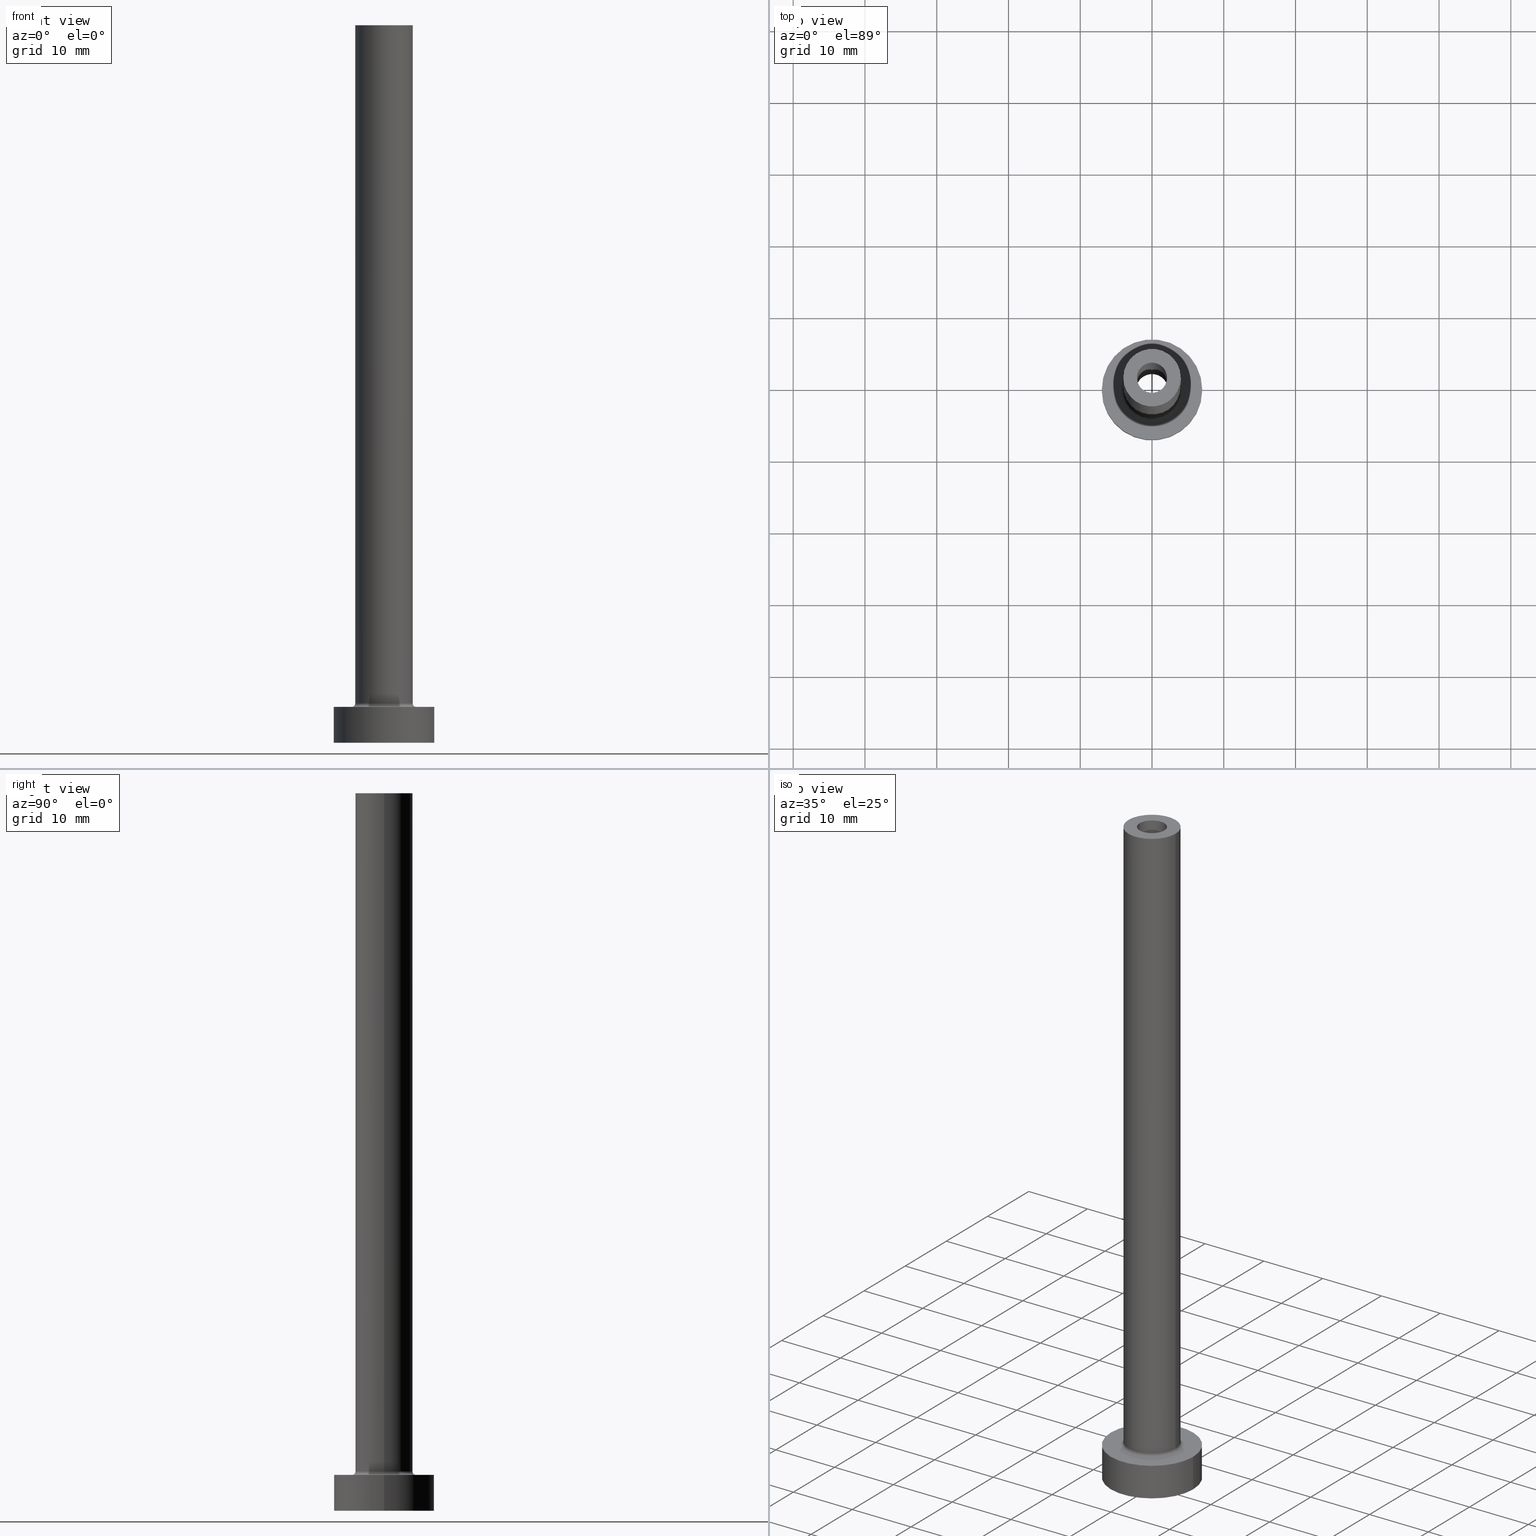
[diagram: canonical four-view strip — front | top / right | iso, engineering-drawing reading convention]
A machine part, canonical four-view strip (front | top / right | iso — engineering-drawing reading convention). The complete STEP part file that produces these views, byte-faithful:
ISO-10303-21;
HEADER;
FILE_DESCRIPTION (( 'STEP AP203' ),
    '1' );
FILE_NAME ('b504.STEP',
    '2023-02-13T11:07:52',
    ( '' ),
    ( '' ),
    'SwSTEP 2.0',
    'SolidWorks 2019',
    '' );
FILE_SCHEMA (( 'CONFIG_CONTROL_DESIGN' ));
ENDSEC;

DATA;
#1 = APPROVAL_DATE_TIME ( #321, #395 ) ;
#2 = DIRECTION ( 'NONE',  ( 0.000000000000000000, 0.000000000000000000, 1.000000000000000000 ) ) ;
#3 = ORIENTED_EDGE ( 'NONE', *, *, #135, .T. ) ;
#4 = MANIFOLD_SOLID_BREP ( 'Odebrat vysunut�m4', #252 ) ;
#5 = PERSON_AND_ORGANIZATION ( #107, #396 ) ;
#6 = EDGE_CURVE ( 'NONE', #234, #433, #453, .T. ) ;
#7 = VECTOR ( 'NONE', #91, 1000.000000000000000 ) ;
#8 = APPROVAL_PERSON_ORGANIZATION ( #5, #395, #420 ) ;
#9 = CARTESIAN_POINT ( 'NONE',  ( -7.000000000000000000, 0.000000000000000000, 0.000000000000000000 ) ) ;
#10 = VERTEX_POINT ( 'NONE', #49 ) ;
#11 = FACE_OUTER_BOUND ( 'NONE', #364, .T. ) ;
#12 = VERTEX_POINT ( 'NONE', #81 ) ;
#13 = ADVANCED_FACE ( 'NONE', ( #445, #19 ), #122, .F. ) ;
#14 = CARTESIAN_POINT ( 'NONE',  ( 0.000000000000000000, 0.000000000000000000, 5.500000000000005329 ) ) ;
#15 = CARTESIAN_POINT ( 'NONE',  ( 0.000000000000000000, 0.000000000000000000, 61.36396103067894359 ) ) ;
#16 = ORIENTED_EDGE ( 'NONE', *, *, #33, .T. ) ;
#17 = LINE ( 'NONE', #223, #362 ) ;
#18 = DIRECTION ( 'NONE',  ( 1.000000000000000000, 0.000000000000000000, 0.000000000000000000 ) ) ;
#19 = FACE_OUTER_BOUND ( 'NONE', #374, .T. ) ;
#20 = DIRECTION ( 'NONE',  ( 1.000000000000000000, 0.000000000000000000, 0.000000000000000000 ) ) ;
#21 = FACE_OUTER_BOUND ( 'NONE', #74, .T. ) ;
#22 = ORIENTED_EDGE ( 'NONE', *, *, #360, .T. ) ;
#23 = CIRCLE ( 'NONE', #287, 0.5000000000000004441 ) ;
#24 = DIRECTION ( 'NONE',  ( 0.000000000000000000, 0.000000000000000000, 1.000000000000000000 ) ) ;
#25 = ORIENTED_EDGE ( 'NONE', *, *, #419, .T. ) ;
#26 = AXIS2_PLACEMENT_3D ( 'NONE', #50, #24, #20 ) ;
#27 = CARTESIAN_POINT ( 'NONE',  ( 0.000000000000000000, 0.000000000000000000, 55.00000000000000711 ) ) ;
#28 = DIRECTION ( 'NONE',  ( -0.000000000000000000, -0.000000000000000000, -1.000000000000000000 ) ) ;
#29 = VERTEX_POINT ( 'NONE', #160 ) ;
#30 = CARTESIAN_POINT ( 'NONE',  ( 0.000000000000000000, 0.000000000000000000, 5.500000000000005329 ) ) ;
#31 = ORIENTED_EDGE ( 'NONE', *, *, #443, .T. ) ;
#32 = CIRCLE ( 'NONE', #84, 2.100000000000000089 ) ;
#33 = EDGE_CURVE ( 'NONE', #182, #12, #144, .T. ) ;
#34 = LINE ( 'NONE', #242, #245 ) ;
#35 = PERSON_AND_ORGANIZATION_ROLE ( 'design_owner' ) ;
#36 = CARTESIAN_POINT ( 'NONE',  ( 7.000000000000000000, 8.572527594031473190E-16, 5.000000000000000000 ) ) ;
#37 = ADVANCED_FACE ( 'NONE', ( #426 ), #461, .F. ) ;
#38 = SHAPE_DEFINITION_REPRESENTATION ( #435, #401 ) ;
#39 = ORIENTED_EDGE ( 'NONE', *, *, #347, .F. ) ;
#40 = LOCAL_TIME ( 12, 7, 52.00000000000000000, #139 ) ;
#41 = PRODUCT_DEFINITION ( 'NEZN�M�', '', #268, #441 ) ;
#42 = CARTESIAN_POINT ( 'NONE',  ( 0.000000000000000000, 0.000000000000000000, 5.000000000000000000 ) ) ;
#43 = VERTEX_POINT ( 'NONE', #36 ) ;
#44 = ORIENTED_EDGE ( 'NONE', *, *, #229, .T. ) ;
#45 = DIRECTION ( 'NONE',  ( 1.000000000000000000, 0.000000000000000000, 0.000000000000000000 ) ) ;
#46 = AXIS2_PLACEMENT_3D ( 'NONE', #202, #444, #94 ) ;
#47 = VERTEX_POINT ( 'NONE', #313 ) ;
#48 = AXIS2_PLACEMENT_3D ( 'NONE', #15, #147, #297 ) ;
#49 = CARTESIAN_POINT ( 'NONE',  ( -4.000000000000000000, 0.000000000000000000, 5.500000000000005329 ) ) ;
#50 = CARTESIAN_POINT ( 'NONE',  ( 0.000000000000000000, 0.000000000000000000, 5.500000000000005329 ) ) ;
#51 = CYLINDRICAL_SURFACE ( 'NONE', #206, 7.000000000000000000 ) ;
#52 = DIRECTION ( 'NONE',  ( 1.000000000000000000, 0.000000000000000000, -0.000000000000000000 ) ) ;
#53 = CARTESIAN_POINT ( 'NONE',  ( 0.000000000000000000, 0.000000000000000000, 5.000000000000000000 ) ) ;
#54 = CARTESIAN_POINT ( 'NONE',  ( 2.250000000000000000, 2.755455298081544285E-16, 0.000000000000000000 ) ) ;
#55 = CARTESIAN_POINT ( 'NONE',  ( 2.100000000000000089, 2.571758278209441464E-16, 55.00000000000000711 ) ) ;
#56 = EDGE_LOOP ( 'NONE', ( #406, #185, #39, #342 ) ) ;
#57 = CIRCLE ( 'NONE', #370, 2.250000000000000000 ) ;
#58 = ADVANCED_FACE ( 'NONE', ( #283 ), #61, .T. ) ;
#59 = CARTESIAN_POINT ( 'NONE',  ( 0.000000000000000000, 0.000000000000000000, 0.000000000000000000 ) ) ;
#60 = ORIENTED_EDGE ( 'NONE', *, *, #279, .T. ) ;
#61 = CYLINDRICAL_SURFACE ( 'NONE', #346, 4.000000000000000000 ) ;
#62 = DIRECTION ( 'NONE',  ( 0.000000000000000000, 0.000000000000000000, 1.000000000000000000 ) ) ;
#63 = AXIS2_PLACEMENT_3D ( 'NONE', #231, #299, #189 ) ;
#64 = CIRCLE ( 'NONE', #255, 7.000000000000000000 ) ;
#65 =( NAMED_UNIT ( * ) SI_UNIT ( $, .STERADIAN. ) SOLID_ANGLE_UNIT ( ) );
#66 = CALENDAR_DATE ( 2023, 13, 2 ) ;
#67 = CARTESIAN_POINT ( 'NONE',  ( 4.000000000000000000, 4.898587196589412829E-16, 100.0000000000000000 ) ) ;
#68 = APPROVAL_STATUS ( 'not_yet_approved' ) ;
#69 = DIRECTION ( 'NONE',  ( -0.000000000000000000, -0.000000000000000000, -1.000000000000000000 ) ) ;
#70 = CARTESIAN_POINT ( 'NONE',  ( 2.100000000000000089, 2.571758278209441464E-16, 100.0000000000000000 ) ) ;
#71 = DATE_AND_TIME ( #66, #110 ) ;
#72 = FACE_BOUND ( 'NONE', #293, .T. ) ;
#73 = ADVANCED_FACE ( 'NONE', ( #175 ), #204, .F. ) ;
#74 = EDGE_LOOP ( 'NONE', ( #250, #178, #129, #80 ) ) ;
#75 = PERSON_AND_ORGANIZATION_ROLE ( 'classification_officer' ) ;
#76 = ORIENTED_EDGE ( 'NONE', *, *, #289, .F. ) ;
#77 = LOCAL_TIME ( 12, 7, 52.00000000000000000, #288 ) ;
#78 = CARTESIAN_POINT ( 'NONE',  ( -4.500000000000000888, 5.510910596163089556E-16, 5.500000000000005329 ) ) ;
#79 = DIRECTION ( 'NONE',  ( 0.000000000000000000, -1.000000000000000000, 0.000000000000000000 ) ) ;
#80 = ORIENTED_EDGE ( 'NONE', *, *, #393, .T. ) ;
#81 = CARTESIAN_POINT ( 'NONE',  ( -2.100000000000000089, 0.000000000000000000, 55.00000000000000711 ) ) ;
#82 = AXIS2_PLACEMENT_3D ( 'NONE', #281, #388, #352 ) ;
#83 = DIRECTION ( 'NONE',  ( 1.000000000000000000, 0.000000000000000000, 0.000000000000000000 ) ) ;
#84 = AXIS2_PLACEMENT_3D ( 'NONE', #131, #62, #452 ) ;
#85 = CARTESIAN_POINT ( 'NONE',  ( -4.000000000000000000, 0.000000000000000000, 100.0000000000000000 ) ) ;
#86 = ORIENTED_EDGE ( 'NONE', *, *, #229, .F. ) ;
#87 = CARTESIAN_POINT ( 'NONE',  ( 0.000000000000000000, 0.000000000000000000, 55.00000000000000711 ) ) ;
#88 = CARTESIAN_POINT ( 'NONE',  ( 0.000000000000000000, 0.000000000000000000, 0.000000000000000000 ) ) ;
#89 = VERTEX_POINT ( 'NONE', #67 ) ;
#90 = DIRECTION ( 'NONE',  ( -0.000000000000000000, -0.000000000000000000, -1.000000000000000000 ) ) ;
#91 = DIRECTION ( 'NONE',  ( 0.000000000000000000, 0.000000000000000000, -1.000000000000000000 ) ) ;
#92 = ORIENTED_EDGE ( 'NONE', *, *, #369, .F. ) ;
#93 = VECTOR ( 'NONE', #407, 1000.000000000000000 ) ;
#94 = DIRECTION ( 'NONE',  ( 1.000000000000000000, 0.000000000000000000, 0.000000000000000000 ) ) ;
#95 = DATE_AND_TIME ( #98, #40 ) ;
#96 = APPLICATION_CONTEXT ( 'configuration controlled 3d designs of mechanical parts and assemblies' ) ;
#97 = SECURITY_CLASSIFICATION ( '', '', #136 ) ;
#98 = CALENDAR_DATE ( 2023, 13, 2 ) ;
#99 = PERSON_AND_ORGANIZATION ( #107, #396 ) ;
#100 = DIRECTION ( 'NONE',  ( -0.000000000000000000, -0.000000000000000000, -1.000000000000000000 ) ) ;
#101 = APPROVAL_DATE_TIME ( #422, #153 ) ;
#102 = VECTOR ( 'NONE', #274, 1000.000000000000000 ) ;
#103 = ORIENTED_EDGE ( 'NONE', *, *, #221, .F. ) ;
#104 = EDGE_LOOP ( 'NONE', ( #222, #311, #416, #201 ) ) ;
#105 = EDGE_CURVE ( 'NONE', #29, #152, #34, .T. ) ;
#106 = EDGE_LOOP ( 'NONE', ( #357, #193, #377, #103 ) ) ;
#107 = PERSON ( 'NEUR�EN�', 'NEUR�EN�', 'NEUR�EN�', ('NEUR�EN�'), ('NEUR�EN�'), ('NEUR�EN�') ) ;
#108 = CC_DESIGN_PERSON_AND_ORGANIZATION_ASSIGNMENT ( #209, #75, ( #97 ) ) ;
#109 = DIRECTION ( 'NONE',  ( 0.000000000000000000, 0.000000000000000000, 1.000000000000000000 ) ) ;
#110 = LOCAL_TIME ( 12, 7, 52.00000000000000000, #133 ) ;
#111 = CARTESIAN_POINT ( 'NONE',  ( 4.500000000000000888, 0.000000000000000000, 5.500000000000005329 ) ) ;
#112 = CARTESIAN_POINT ( 'NONE',  ( 0.000000000000000000, 0.000000000000000000, 5.000000000000000000 ) ) ;
#113 = FACE_OUTER_BOUND ( 'NONE', #197, .T. ) ;
#114 = ORIENTED_EDGE ( 'NONE', *, *, #105, .T. ) ;
#115 = CARTESIAN_POINT ( 'NONE',  ( -4.500000000000000888, 5.510910596163088569E-16, 5.000000000000002665 ) ) ;
#116 = ADVANCED_FACE ( 'NONE', ( #72, #378 ), #243, .T. ) ;
#117 = DIRECTION ( 'NONE',  ( 1.000000000000000000, 0.000000000000000000, 0.000000000000000000 ) ) ;
#118 = CIRCLE ( 'NONE', #421, 7.000000000000000000 ) ;
#119 = CYLINDRICAL_SURFACE ( 'NONE', #218, 7.000000000000000000 ) ;
#120 = LOCAL_TIME ( 12, 7, 52.00000000000000000, #392 ) ;
#121 = CARTESIAN_POINT ( 'NONE',  ( -2.250000000000000000, 0.000000000000000000, 55.00000000000000711 ) ) ;
#122 = PLANE ( 'NONE',  #278 ) ;
#123 = CARTESIAN_POINT ( 'NONE',  ( 4.000000000000000000, 4.898587196589412829E-16, 100.0000000000000000 ) ) ;
#124 = EDGE_CURVE ( 'NONE', #361, #182, #391, .T. ) ;
#125 = LINE ( 'NONE', #233, #132 ) ;
#126 = ORIENTED_EDGE ( 'NONE', *, *, #380, .F. ) ;
#127 = AXIS2_PLACEMENT_3D ( 'NONE', #417, #236, #172 ) ;
#128 = CARTESIAN_POINT ( 'NONE',  ( 0.000000000000000000, 0.000000000000000000, 100.0000000000000000 ) ) ;
#129 = ORIENTED_EDGE ( 'NONE', *, *, #6, .T. ) ;
#130 =( GEOMETRIC_REPRESENTATION_CONTEXT ( 3 ) GLOBAL_UNCERTAINTY_ASSIGNED_CONTEXT ( ( #266 ) ) GLOBAL_UNIT_ASSIGNED_CONTEXT ( ( #314, #389, #65 ) ) REPRESENTATION_CONTEXT ( 'NONE', 'WORKASPACE' ) );
#131 = CARTESIAN_POINT ( 'NONE',  ( 0.000000000000000000, 0.000000000000000000, 55.00000000000000711 ) ) ;
#132 = VECTOR ( 'NONE', #384, 1000.000000000000000 ) ;
#133 = COORDINATED_UNIVERSAL_TIME_OFFSET ( 1, 0, .AHEAD. ) ;
#134 = CARTESIAN_POINT ( 'NONE',  ( 0.000000000000000000, 0.000000000000000000, 100.0000000000000000 ) ) ;
#135 = EDGE_CURVE ( 'NONE', #29, #43, #118, .T. ) ;
#136 = SECURITY_CLASSIFICATION_LEVEL ( 'unclassified' ) ;
#137 = PERSON_AND_ORGANIZATION ( #107, #396 ) ;
#138 = AXIS2_PLACEMENT_3D ( 'NONE', #196, #270, #408 ) ;
#139 = COORDINATED_UNIVERSAL_TIME_OFFSET ( 1, 0, .AHEAD. ) ;
#140 = ADVANCED_FACE ( 'NONE', ( #181, #177 ), #214, .T. ) ;
#141 = ORIENTED_EDGE ( 'NONE', *, *, #221, .T. ) ;
#142 = CARTESIAN_POINT ( 'NONE',  ( 0.000000000000000000, 0.000000000000000000, 0.000000000000000000 ) ) ;
#143 = EDGE_LOOP ( 'NONE', ( #304, #451 ) ) ;
#144 = CIRCLE ( 'NONE', #82, 2.100000000000000089 ) ;
#145 = DIRECTION ( 'NONE',  ( -0.000000000000000000, -0.000000000000000000, -1.000000000000000000 ) ) ;
#146 = AXIS2_PLACEMENT_3D ( 'NONE', #411, #332, #405 ) ;
#147 = DIRECTION ( 'NONE',  ( 0.000000000000000000, 0.000000000000000000, -1.000000000000000000 ) ) ;
#148 = ORIENTED_EDGE ( 'NONE', *, *, #194, .T. ) ;
#149 = APPLICATION_CONTEXT ( 'configuration controlled 3d designs of mechanical parts and assemblies' ) ;
#150 = DIRECTION ( 'NONE',  ( 1.224646799147353207E-16, 1.000000000000000000, -0.000000000000000000 ) ) ;
#151 = DIRECTION ( 'NONE',  ( 0.000000000000000000, 0.000000000000000000, -1.000000000000000000 ) ) ;
#152 = VERTEX_POINT ( 'NONE', #9 ) ;
#153 = APPROVAL ( #238, 'NEUR�EN�' ) ;
#154 = DIRECTION ( 'NONE',  ( -0.000000000000000000, -0.000000000000000000, -1.000000000000000000 ) ) ;
#155 = DIRECTION ( 'NONE',  ( -1.000000000000000000, 0.000000000000000000, 0.000000000000000000 ) ) ;
#156 = DIRECTION ( 'NONE',  ( -0.000000000000000000, -0.000000000000000000, -1.000000000000000000 ) ) ;
#157 = EDGE_CURVE ( 'NONE', #448, #382, #23, .T. ) ;
#158 = CC_DESIGN_SECURITY_CLASSIFICATION ( #97, ( #268 ) ) ;
#159 = DIRECTION ( 'NONE',  ( 0.000000000000000000, 0.000000000000000000, -1.000000000000000000 ) ) ;
#160 = CARTESIAN_POINT ( 'NONE',  ( -7.000000000000000000, 0.000000000000000000, 5.000000000000000000 ) ) ;
#161 = CYLINDRICAL_SURFACE ( 'NONE', #48, 2.250000000000000000 ) ;
#162 = ORIENTED_EDGE ( 'NONE', *, *, #322, .F. ) ;
#163 = DIRECTION ( 'NONE',  ( 1.000000000000000000, 0.000000000000000000, 0.000000000000000000 ) ) ;
#164 = ORIENTED_EDGE ( 'NONE', *, *, #263, .T. ) ;
#165 = CARTESIAN_POINT ( 'NONE',  ( 0.000000000000000000, 0.000000000000000000, 5.000000000000000000 ) ) ;
#166 = CIRCLE ( 'NONE', #423, 4.000000000000000000 ) ;
#167 = CC_DESIGN_PERSON_AND_ORGANIZATION_ASSIGNMENT ( #99, #35, ( #256 ) ) ;
#168 = DIRECTION ( 'NONE',  ( 0.000000000000000000, 0.000000000000000000, -1.000000000000000000 ) ) ;
#169 = DIRECTION ( 'NONE',  ( -0.000000000000000000, -0.000000000000000000, -1.000000000000000000 ) ) ;
#170 = DATE_TIME_ROLE ( 'creation_date' ) ;
#171 = CALENDAR_DATE ( 2023, 13, 2 ) ;
#172 = DIRECTION ( 'NONE',  ( -1.000000000000000000, 0.000000000000000000, 0.000000000000000000 ) ) ;
#173 = AXIS2_PLACEMENT_3D ( 'NONE', #88, #367, #303 ) ;
#174 = TOROIDAL_SURFACE ( 'NONE', #410, 4.500000000000000888, 0.5000000000000000000 ) ;
#175 = FACE_OUTER_BOUND ( 'NONE', #106, .T. ) ;
#176 = PERSON_AND_ORGANIZATION_ROLE ( 'creator' ) ;
#177 = FACE_OUTER_BOUND ( 'NONE', #415, .T. ) ;
#178 = ORIENTED_EDGE ( 'NONE', *, *, #380, .T. ) ;
#179 = EDGE_LOOP ( 'NONE', ( #212, #162, #432, #309 ) ) ;
#180 = VECTOR ( 'NONE', #156, 1000.000000000000000 ) ;
#181 = FACE_BOUND ( 'NONE', #143, .T. ) ;
#182 = VERTEX_POINT ( 'NONE', #55 ) ;
#183 = ORIENTED_EDGE ( 'NONE', *, *, #263, .F. ) ;
#184 = DIRECTION ( 'NONE',  ( -1.000000000000000000, 0.000000000000000000, 0.000000000000000000 ) ) ;
#185 = ORIENTED_EDGE ( 'NONE', *, *, #424, .T. ) ;
#186 = ADVANCED_FACE ( 'NONE', ( #21 ), #447, .F. ) ;
#187 = CYLINDRICAL_SURFACE ( 'NONE', #371, 4.000000000000000000 ) ;
#188 = CIRCLE ( 'NONE', #146, 4.000000000000000000 ) ;
#189 = DIRECTION ( 'NONE',  ( 1.000000000000000000, 0.000000000000000000, 0.000000000000000000 ) ) ;
#190 = CARTESIAN_POINT ( 'NONE',  ( -2.250000000000000000, 0.000000000000000000, 61.36396103067894359 ) ) ;
#191 = CC_DESIGN_PERSON_AND_ORGANIZATION_ASSIGNMENT ( #319, #355, ( #268 ) ) ;
#192 = DIRECTION ( 'NONE',  ( 0.000000000000000000, 0.000000000000000000, 1.000000000000000000 ) ) ;
#193 = ORIENTED_EDGE ( 'NONE', *, *, #124, .T. ) ;
#194 = EDGE_CURVE ( 'NONE', #328, #152, #383, .T. ) ;
#195 = CARTESIAN_POINT ( 'NONE',  ( 0.000000000000000000, 0.000000000000000000, 5.000000000000000000 ) ) ;
#196 = CARTESIAN_POINT ( 'NONE',  ( 0.000000000000000000, 0.000000000000000000, 100.0000000000000000 ) ) ;
#197 = EDGE_LOOP ( 'NONE', ( #338, #400, #114, #359 ) ) ;
#198 = CIRCLE ( 'NONE', #63, 7.000000000000000000 ) ;
#199 = CC_DESIGN_APPROVAL ( #395, ( #41 ) ) ;
#200 = FACE_OUTER_BOUND ( 'NONE', #219, .T. ) ;
#201 = ORIENTED_EDGE ( 'NONE', *, *, #360, .F. ) ;
#202 = CARTESIAN_POINT ( 'NONE',  ( 0.000000000000000000, 0.000000000000000000, 5.500000000000005329 ) ) ;
#203 = ORIENTED_EDGE ( 'NONE', *, *, #6, .F. ) ;
#204 = CYLINDRICAL_SURFACE ( 'NONE', #366, 2.100000000000000089 ) ;
#205 = ADVANCED_FACE ( 'NONE', ( #341 ), #402, .F. ) ;
#206 = AXIS2_PLACEMENT_3D ( 'NONE', #235, #333, #381 ) ;
#207 = AXIS2_PLACEMENT_3D ( 'NONE', #142, #324, #434 ) ;
#208 = PERSON_AND_ORGANIZATION ( #107, #396 ) ;
#209 = PERSON_AND_ORGANIZATION ( #107, #396 ) ;
#210 = CC_DESIGN_DATE_AND_TIME_ASSIGNMENT ( #95, #170, ( #41 ) ) ;
#211 = PERSON_AND_ORGANIZATION_ROLE ( 'creator' ) ;
#212 = ORIENTED_EDGE ( 'NONE', *, *, #424, .F. ) ;
#213 = CALENDAR_DATE ( 2023, 13, 2 ) ;
#214 = PLANE ( 'NONE',  #217 ) ;
#215 = VERTEX_POINT ( 'NONE', #85 ) ;
#216 = CC_DESIGN_PERSON_AND_ORGANIZATION_ASSIGNMENT ( #137, #176, ( #41 ) ) ;
#217 = AXIS2_PLACEMENT_3D ( 'NONE', #42, #327, #356 ) ;
#218 = AXIS2_PLACEMENT_3D ( 'NONE', #112, #90, #257 ) ;
#219 = EDGE_LOOP ( 'NONE', ( #265, #60, #164, #203 ) ) ;
#220 = DIRECTION ( 'NONE',  ( -1.000000000000000000, 1.224646799147351482E-16, 0.000000000000000000 ) ) ;
#221 = EDGE_CURVE ( 'NONE', #47, #12, #125, .T. ) ;
#222 = ORIENTED_EDGE ( 'NONE', *, *, #302, .F. ) ;
#223 = CARTESIAN_POINT ( 'NONE',  ( 7.000000000000000000, 8.572527594031473190E-16, 5.000000000000000000 ) ) ;
#224 = ORIENTED_EDGE ( 'NONE', *, *, #249, .F. ) ;
#225 = AXIS2_PLACEMENT_3D ( 'NONE', #317, #272, #379 ) ;
#226 = AXIS2_PLACEMENT_3D ( 'NONE', #376, #412, #117 ) ;
#227 = CIRCLE ( 'NONE', #320, 0.5000000000000004441 ) ;
#228 = CARTESIAN_POINT ( 'NONE',  ( 2.250000000000000000, 2.755455298081544285E-16, 61.36396103067894359 ) ) ;
#229 = EDGE_CURVE ( 'NONE', #43, #29, #198, .T. ) ;
#230 = DIRECTION ( 'NONE',  ( 1.000000000000000000, 0.000000000000000000, 0.000000000000000000 ) ) ;
#231 = CARTESIAN_POINT ( 'NONE',  ( 0.000000000000000000, 0.000000000000000000, 5.000000000000000000 ) ) ;
#232 = EDGE_LOOP ( 'NONE', ( #290, #335 ) ) ;
#233 = CARTESIAN_POINT ( 'NONE',  ( -2.100000000000000089, 0.000000000000000000, 100.0000000000000000 ) ) ;
#234 = VERTEX_POINT ( 'NONE', #121 ) ;
#235 = CARTESIAN_POINT ( 'NONE',  ( 0.000000000000000000, 0.000000000000000000, 5.000000000000000000 ) ) ;
#236 = DIRECTION ( 'NONE',  ( 0.000000000000000000, 0.000000000000000000, -1.000000000000000000 ) ) ;
#237 = DIRECTION ( 'NONE',  ( 0.000000000000000000, 0.000000000000000000, 1.000000000000000000 ) ) ;
#238 = APPROVAL_STATUS ( 'not_yet_approved' ) ;
#239 = AXIS2_PLACEMENT_3D ( 'NONE', #414, #109, #230 ) ;
#240 = EDGE_CURVE ( 'NONE', #361, #47, #429, .T. ) ;
#241 = APPROVAL_STATUS ( 'not_yet_approved' ) ;
#242 = CARTESIAN_POINT ( 'NONE',  ( -7.000000000000000000, 0.000000000000000000, 5.000000000000000000 ) ) ;
#243 = PLANE ( 'NONE',  #225 ) ;
#244 = PRODUCT_RELATED_PRODUCT_CATEGORY ( 'detail', '', ( #256 ) ) ;
#245 = VECTOR ( 'NONE', #69, 1000.000000000000000 ) ;
#246 = DIRECTION ( 'NONE',  ( 1.000000000000000000, 0.000000000000000000, 0.000000000000000000 ) ) ;
#247 = AXIS2_PLACEMENT_3D ( 'NONE', #373, #159, #155 ) ;
#248 = CIRCLE ( 'NONE', #26, 4.000000000000000000 ) ;
#249 = EDGE_CURVE ( 'NONE', #47, #361, #459, .T. ) ;
#250 = ORIENTED_EDGE ( 'NONE', *, *, #279, .F. ) ;
#251 = EDGE_LOOP ( 'NONE', ( #76, #92, #22, #275 ) ) ;
#252 = CLOSED_SHELL ( 'NONE', ( #73, #294, #205, #315, #353, #254, #140, #13, #58, #116, #430, #186, #458, #37 ) ) ;
#253 = ORIENTED_EDGE ( 'NONE', *, *, #124, .F. ) ;
#254 = ADVANCED_FACE ( 'NONE', ( #113 ), #51, .T. ) ;
#255 = AXIS2_PLACEMENT_3D ( 'NONE', #59, #308, #307 ) ;
#256 = PRODUCT ( 'b504', 'b504', '', ( #399 ) ) ;
#257 = DIRECTION ( 'NONE',  ( -1.000000000000000000, 0.000000000000000000, 0.000000000000000000 ) ) ;
#258 = EDGE_LOOP ( 'NONE', ( #385, #183 ) ) ;
#259 = CARTESIAN_POINT ( 'NONE',  ( 0.000000000000000000, 0.000000000000000000, 0.000000000000000000 ) ) ;
#260 = ORIENTED_EDGE ( 'NONE', *, *, #240, .F. ) ;
#261 = CARTESIAN_POINT ( 'NONE',  ( -4.000000000000000000, 0.000000000000000000, 100.0000000000000000 ) ) ;
#262 = VECTOR ( 'NONE', #284, 1000.000000000000000 ) ;
#263 = EDGE_CURVE ( 'NONE', #403, #433, #409, .T. ) ;
#264 = LINE ( 'NONE', #228, #7 ) ;
#265 = ORIENTED_EDGE ( 'NONE', *, *, #340, .T. ) ;
#266 = UNCERTAINTY_MEASURE_WITH_UNIT (LENGTH_MEASURE( 1.000000000000000082E-05 ), #314, 'distance_accuracy_value', 'NONE');
#267 = AXIS2_PLACEMENT_3D ( 'NONE', #337, #28, #18 ) ;
#268 = PRODUCT_DEFINITION_FORMATION_WITH_SPECIFIED_SOURCE ( 'LIBOVOLN�', '', #256, .NOT_KNOWN. ) ;
#269 = CARTESIAN_POINT ( 'NONE',  ( 2.100000000000000089, 2.571758278209441464E-16, 100.0000000000000000 ) ) ;
#270 = DIRECTION ( 'NONE',  ( 0.000000000000000000, 0.000000000000000000, 1.000000000000000000 ) ) ;
#271 = CARTESIAN_POINT ( 'NONE',  ( 0.000000000000000000, 0.000000000000000000, 0.000000000000000000 ) ) ;
#272 = DIRECTION ( 'NONE',  ( 0.000000000000000000, 0.000000000000000000, 1.000000000000000000 ) ) ;
#273 = FACE_OUTER_BOUND ( 'NONE', #104, .T. ) ;
#274 = DIRECTION ( 'NONE',  ( -0.000000000000000000, -0.000000000000000000, -1.000000000000000000 ) ) ;
#275 = ORIENTED_EDGE ( 'NONE', *, *, #310, .T. ) ;
#276 = DIRECTION ( 'NONE',  ( 1.000000000000000000, 0.000000000000000000, 0.000000000000000000 ) ) ;
#277 = ORIENTED_EDGE ( 'NONE', *, *, #286, .F. ) ;
#278 = AXIS2_PLACEMENT_3D ( 'NONE', #271, #413, #52 ) ;
#279 = EDGE_CURVE ( 'NONE', #330, #403, #264, .T. ) ;
#280 = AXIS2_PLACEMENT_3D ( 'NONE', #14, #192, #45 ) ;
#281 = CARTESIAN_POINT ( 'NONE',  ( 0.000000000000000000, 0.000000000000000000, 55.00000000000000711 ) ) ;
#282 = CARTESIAN_POINT ( 'NONE',  ( 4.000000000000000000, 4.898587196589412829E-16, 5.500000000000005329 ) ) ;
#283 = FACE_OUTER_BOUND ( 'NONE', #251, .T. ) ;
#284 = DIRECTION ( 'NONE',  ( 0.000000000000000000, 0.000000000000000000, -1.000000000000000000 ) ) ;
#285 = FACE_BOUND ( 'NONE', #292, .T. ) ;
#286 = EDGE_CURVE ( 'NONE', #152, #328, #64, .T. ) ;
#287 = AXIS2_PLACEMENT_3D ( 'NONE', #111, #79, #151 ) ;
#288 = COORDINATED_UNIVERSAL_TIME_OFFSET ( 1, 0, .AHEAD. ) ;
#289 = EDGE_CURVE ( 'NONE', #89, #448, #450, .T. ) ;
#290 = ORIENTED_EDGE ( 'NONE', *, *, #369, .T. ) ;
#291 = APPLICATION_PROTOCOL_DEFINITION ( 'international standard', 'config_control_design', 1994, #96 ) ;
#292 = EDGE_LOOP ( 'NONE', ( #31, #16 ) ) ;
#293 = EDGE_LOOP ( 'NONE', ( #224, #260 ) ) ;
#294 = ADVANCED_FACE ( 'NONE', ( #200 ), #161, .F. ) ;
#295 = DIRECTION ( 'NONE',  ( -0.000000000000000000, -0.000000000000000000, -1.000000000000000000 ) ) ;
#296 = APPROVAL_PERSON_ORGANIZATION ( #390, #350, #427 ) ;
#297 = DIRECTION ( 'NONE',  ( -1.000000000000000000, 0.000000000000000000, 0.000000000000000000 ) ) ;
#298 = EDGE_LOOP ( 'NONE', ( #398, #126 ) ) ;
#299 = DIRECTION ( 'NONE',  ( 0.000000000000000000, 0.000000000000000000, 1.000000000000000000 ) ) ;
#300 = ORIENTED_EDGE ( 'NONE', *, *, #105, .F. ) ;
#301 = CARTESIAN_POINT ( 'NONE',  ( 2.250000000000000000, 2.755455298081544285E-16, 55.00000000000000711 ) ) ;
#302 = EDGE_CURVE ( 'NONE', #89, #215, #166, .T. ) ;
#303 = DIRECTION ( 'NONE',  ( 1.000000000000000000, 0.000000000000000000, 0.000000000000000000 ) ) ;
#304 = ORIENTED_EDGE ( 'NONE', *, *, #347, .T. ) ;
#305 = CC_DESIGN_APPROVAL ( #153, ( #268 ) ) ;
#306 = DIRECTION ( 'NONE',  ( 1.000000000000000000, 0.000000000000000000, 0.000000000000000000 ) ) ;
#307 = DIRECTION ( 'NONE',  ( 1.000000000000000000, 0.000000000000000000, 0.000000000000000000 ) ) ;
#308 = DIRECTION ( 'NONE',  ( 0.000000000000000000, 0.000000000000000000, 1.000000000000000000 ) ) ;
#309 = ORIENTED_EDGE ( 'NONE', *, *, #438, .F. ) ;
#310 = EDGE_CURVE ( 'NONE', #10, #448, #312, .T. ) ;
#311 = ORIENTED_EDGE ( 'NONE', *, *, #289, .T. ) ;
#312 = CIRCLE ( 'NONE', #280, 4.000000000000000000 ) ;
#313 = CARTESIAN_POINT ( 'NONE',  ( -2.100000000000000089, 0.000000000000000000, 100.0000000000000000 ) ) ;
#314 =( LENGTH_UNIT ( ) NAMED_UNIT ( * ) SI_UNIT ( .MILLI., .METRE. ) );
#315 = ADVANCED_FACE ( 'NONE', ( #273 ), #187, .T. ) ;
#316 = DIRECTION ( 'NONE',  ( -1.000000000000000000, 0.000000000000000000, 0.000000000000000000 ) ) ;
#317 = CARTESIAN_POINT ( 'NONE',  ( 0.000000000000000000, 0.000000000000000000, 100.0000000000000000 ) ) ;
#318 = DATE_TIME_ROLE ( 'classification_date' ) ;
#319 = PERSON_AND_ORGANIZATION ( #107, #396 ) ;
#320 = AXIS2_PLACEMENT_3D ( 'NONE', #78, #150, #220 ) ;
#321 = DATE_AND_TIME ( #171, #77 ) ;
#322 = EDGE_CURVE ( 'NONE', #448, #10, #248, .T. ) ;
#323 = VERTEX_POINT ( 'NONE', #115 ) ;
#324 = DIRECTION ( 'NONE',  ( 0.000000000000000000, 0.000000000000000000, 1.000000000000000000 ) ) ;
#325 = PERSON_AND_ORGANIZATION ( #107, #396 ) ;
#326 = APPROVAL_PERSON_ORGANIZATION ( #208, #153, #386 ) ;
#327 = DIRECTION ( 'NONE',  ( 0.000000000000000000, 0.000000000000000000, 1.000000000000000000 ) ) ;
#328 = VERTEX_POINT ( 'NONE', #329 ) ;
#329 = CARTESIAN_POINT ( 'NONE',  ( 7.000000000000000000, 8.572527594031473190E-16, 0.000000000000000000 ) ) ;
#330 = VERTEX_POINT ( 'NONE', #301 ) ;
#331 = FACE_OUTER_BOUND ( 'NONE', #179, .T. ) ;
#332 = DIRECTION ( 'NONE',  ( 0.000000000000000000, 0.000000000000000000, 1.000000000000000000 ) ) ;
#333 = DIRECTION ( 'NONE',  ( -0.000000000000000000, -0.000000000000000000, -1.000000000000000000 ) ) ;
#334 = ORIENTED_EDGE ( 'NONE', *, *, #33, .F. ) ;
#335 = ORIENTED_EDGE ( 'NONE', *, *, #302, .T. ) ;
#336 = CARTESIAN_POINT ( 'NONE',  ( 4.500000000000000888, 0.000000000000000000, 5.000000000000002665 ) ) ;
#337 = CARTESIAN_POINT ( 'NONE',  ( 0.000000000000000000, 0.000000000000000000, 0.000000000000000000 ) ) ;
#338 = ORIENTED_EDGE ( 'NONE', *, *, #419, .F. ) ;
#339 = LOCAL_TIME ( 12, 7, 52.00000000000000000, #428 ) ;
#340 = EDGE_CURVE ( 'NONE', #234, #330, #387, .T. ) ;
#341 = FACE_OUTER_BOUND ( 'NONE', #56, .T. ) ;
#342 = ORIENTED_EDGE ( 'NONE', *, *, #157, .F. ) ;
#343 = DIRECTION ( 'NONE',  ( 0.000000000000000000, 0.000000000000000000, 1.000000000000000000 ) ) ;
#344 = EDGE_LOOP ( 'NONE', ( #253, #440, #141, #334 ) ) ;
#345 = CARTESIAN_POINT ( 'NONE',  ( 0.000000000000000000, 0.000000000000000000, 100.0000000000000000 ) ) ;
#346 = AXIS2_PLACEMENT_3D ( 'NONE', #134, #100, #349 ) ;
#347 = EDGE_CURVE ( 'NONE', #382, #323, #454, .T. ) ;
#348 = CIRCLE ( 'NONE', #446, 4.500000000000000888 ) ;
#349 = DIRECTION ( 'NONE',  ( -1.000000000000000000, 0.000000000000000000, 0.000000000000000000 ) ) ;
#350 = APPROVAL ( #68, 'NEUR�EN�' ) ;
#351 = DIRECTION ( 'NONE',  ( 0.000000000000000000, 0.000000000000000000, 1.000000000000000000 ) ) ;
#352 = DIRECTION ( 'NONE',  ( 1.000000000000000000, 0.000000000000000000, 0.000000000000000000 ) ) ;
#353 = ADVANCED_FACE ( 'NONE', ( #11 ), #119, .T. ) ;
#354 = AXIS2_PLACEMENT_3D ( 'NONE', #195, #145, #442 ) ;
#355 = PERSON_AND_ORGANIZATION_ROLE ( 'design_supplier' ) ;
#356 = DIRECTION ( 'NONE',  ( 1.000000000000000000, 0.000000000000000000, -0.000000000000000000 ) ) ;
#357 = ORIENTED_EDGE ( 'NONE', *, *, #249, .T. ) ;
#358 = APPROVAL_DATE_TIME ( #71, #350 ) ;
#359 = ORIENTED_EDGE ( 'NONE', *, *, #286, .T. ) ;
#360 = EDGE_CURVE ( 'NONE', #215, #10, #436, .T. ) ;
#361 = VERTEX_POINT ( 'NONE', #269 ) ;
#362 = VECTOR ( 'NONE', #295, 1000.000000000000000 ) ;
#363 = CC_DESIGN_PERSON_AND_ORGANIZATION_ASSIGNMENT ( #325, #211, ( #268 ) ) ;
#364 = EDGE_LOOP ( 'NONE', ( #86, #25, #148, #300 ) ) ;
#365 = DIRECTION ( 'NONE',  ( -0.000000000000000000, -0.000000000000000000, -1.000000000000000000 ) ) ;
#366 = AXIS2_PLACEMENT_3D ( 'NONE', #345, #168, #316 ) ;
#367 = DIRECTION ( 'NONE',  ( 0.000000000000000000, 0.000000000000000000, 1.000000000000000000 ) ) ;
#368 = ORIENTED_EDGE ( 'NONE', *, *, #194, .F. ) ;
#369 = EDGE_CURVE ( 'NONE', #215, #89, #188, .T. ) ;
#370 = AXIS2_PLACEMENT_3D ( 'NONE', #87, #375, #83 ) ;
#371 = AXIS2_PLACEMENT_3D ( 'NONE', #372, #154, #184 ) ;
#372 = CARTESIAN_POINT ( 'NONE',  ( 0.000000000000000000, 0.000000000000000000, 100.0000000000000000 ) ) ;
#373 = CARTESIAN_POINT ( 'NONE',  ( 0.000000000000000000, 0.000000000000000000, 61.36396103067894359 ) ) ;
#374 = EDGE_LOOP ( 'NONE', ( #277, #368 ) ) ;
#375 = DIRECTION ( 'NONE',  ( 0.000000000000000000, 0.000000000000000000, 1.000000000000000000 ) ) ;
#376 = CARTESIAN_POINT ( 'NONE',  ( 0.000000000000000000, 0.000000000000000000, 100.0000000000000000 ) ) ;
#377 = ORIENTED_EDGE ( 'NONE', *, *, #443, .F. ) ;
#378 = FACE_OUTER_BOUND ( 'NONE', #232, .T. ) ;
#379 = DIRECTION ( 'NONE',  ( 1.000000000000000000, 0.000000000000000000, -0.000000000000000000 ) ) ;
#380 = EDGE_CURVE ( 'NONE', #330, #234, #57, .T. ) ;
#381 = DIRECTION ( 'NONE',  ( -1.000000000000000000, 0.000000000000000000, 0.000000000000000000 ) ) ;
#382 = VERTEX_POINT ( 'NONE', #336 ) ;
#383 = CIRCLE ( 'NONE', #173, 7.000000000000000000 ) ;
#384 = DIRECTION ( 'NONE',  ( 0.000000000000000000, 0.000000000000000000, -1.000000000000000000 ) ) ;
#385 = ORIENTED_EDGE ( 'NONE', *, *, #393, .F. ) ;
#386 = APPROVAL_ROLE ( '' ) ;
#387 = CIRCLE ( 'NONE', #239, 2.250000000000000000 ) ;
#388 = DIRECTION ( 'NONE',  ( 0.000000000000000000, 0.000000000000000000, 1.000000000000000000 ) ) ;
#389 =( NAMED_UNIT ( * ) PLANE_ANGLE_UNIT ( ) SI_UNIT ( $, .RADIAN. ) );
#390 = PERSON_AND_ORGANIZATION ( #107, #396 ) ;
#391 = LINE ( 'NONE', #70, #262 ) ;
#392 = COORDINATED_UNIVERSAL_TIME_OFFSET ( 1, 0, .AHEAD. ) ;
#393 = EDGE_CURVE ( 'NONE', #433, #403, #431, .T. ) ;
#394 = DATE_AND_TIME ( #213, #339 ) ;
#395 = APPROVAL ( #241, 'NEUR�EN�' ) ;
#396 = ORGANIZATION ( 'NEUR�EN�', 'NEUR�EN�', '' ) ;
#397 = APPLICATION_PROTOCOL_DEFINITION ( 'international standard', 'config_control_design', 1994, #149 ) ;
#398 = ORIENTED_EDGE ( 'NONE', *, *, #340, .F. ) ;
#399 = MECHANICAL_CONTEXT ( 'NONE', #96, 'mechanical' ) ;
#400 = ORIENTED_EDGE ( 'NONE', *, *, #135, .F. ) ;
#401 = ADVANCED_BREP_SHAPE_REPRESENTATION ( 'b504', ( #4, #207 ), #130 ) ;
#402 = TOROIDAL_SURFACE ( 'NONE', #46, 4.500000000000000888, 0.5000000000000000000 ) ;
#403 = VERTEX_POINT ( 'NONE', #54 ) ;
#404 = AXIS2_PLACEMENT_3D ( 'NONE', #27, #237, #456 ) ;
#405 = DIRECTION ( 'NONE',  ( 1.000000000000000000, 0.000000000000000000, 0.000000000000000000 ) ) ;
#406 = ORIENTED_EDGE ( 'NONE', *, *, #310, .F. ) ;
#407 = DIRECTION ( 'NONE',  ( 0.000000000000000000, 0.000000000000000000, -1.000000000000000000 ) ) ;
#408 = DIRECTION ( 'NONE',  ( 1.000000000000000000, 0.000000000000000000, 0.000000000000000000 ) ) ;
#409 = CIRCLE ( 'NONE', #267, 2.250000000000000000 ) ;
#410 = AXIS2_PLACEMENT_3D ( 'NONE', #30, #351, #276 ) ;
#411 = CARTESIAN_POINT ( 'NONE',  ( 0.000000000000000000, 0.000000000000000000, 100.0000000000000000 ) ) ;
#412 = DIRECTION ( 'NONE',  ( 0.000000000000000000, 0.000000000000000000, 1.000000000000000000 ) ) ;
#413 = DIRECTION ( 'NONE',  ( 0.000000000000000000, 0.000000000000000000, 1.000000000000000000 ) ) ;
#414 = CARTESIAN_POINT ( 'NONE',  ( 0.000000000000000000, 0.000000000000000000, 55.00000000000000711 ) ) ;
#415 = EDGE_LOOP ( 'NONE', ( #3, #44 ) ) ;
#416 = ORIENTED_EDGE ( 'NONE', *, *, #322, .T. ) ;
#417 = CARTESIAN_POINT ( 'NONE',  ( 0.000000000000000000, 0.000000000000000000, 100.0000000000000000 ) ) ;
#418 = PLANE ( 'NONE',  #404 ) ;
#419 = EDGE_CURVE ( 'NONE', #43, #328, #17, .T. ) ;
#420 = APPROVAL_ROLE ( '' ) ;
#421 = AXIS2_PLACEMENT_3D ( 'NONE', #53, #2, #246 ) ;
#422 = DATE_AND_TIME ( #425, #120 ) ;
#423 = AXIS2_PLACEMENT_3D ( 'NONE', #128, #343, #163 ) ;
#424 = EDGE_CURVE ( 'NONE', #10, #323, #227, .T. ) ;
#425 = CALENDAR_DATE ( 2023, 13, 2 ) ;
#426 = FACE_OUTER_BOUND ( 'NONE', #344, .T. ) ;
#427 = APPROVAL_ROLE ( '' ) ;
#428 = COORDINATED_UNIVERSAL_TIME_OFFSET ( 1, 0, .AHEAD. ) ;
#429 = CIRCLE ( 'NONE', #138, 2.100000000000000089 ) ;
#430 = ADVANCED_FACE ( 'NONE', ( #331 ), #174, .F. ) ;
#431 = CIRCLE ( 'NONE', #460, 2.250000000000000000 ) ;
#432 = ORIENTED_EDGE ( 'NONE', *, *, #157, .T. ) ;
#433 = VERTEX_POINT ( 'NONE', #439 ) ;
#434 = DIRECTION ( 'NONE',  ( 1.000000000000000000, 0.000000000000000000, 0.000000000000000000 ) ) ;
#435 = PRODUCT_DEFINITION_SHAPE ( 'NONE', 'NONE',  #41 ) ;
#436 = LINE ( 'NONE', #261, #180 ) ;
#437 = CC_DESIGN_APPROVAL ( #350, ( #97 ) ) ;
#438 = EDGE_CURVE ( 'NONE', #323, #382, #348, .T. ) ;
#439 = CARTESIAN_POINT ( 'NONE',  ( -2.250000000000000000, 0.000000000000000000, 0.000000000000000000 ) ) ;
#440 = ORIENTED_EDGE ( 'NONE', *, *, #240, .T. ) ;
#441 = DESIGN_CONTEXT ( 'detailed design', #149, 'design' ) ;
#442 = DIRECTION ( 'NONE',  ( 1.000000000000000000, 0.000000000000000000, 0.000000000000000000 ) ) ;
#443 = EDGE_CURVE ( 'NONE', #12, #182, #32, .T. ) ;
#444 = DIRECTION ( 'NONE',  ( 0.000000000000000000, 0.000000000000000000, 1.000000000000000000 ) ) ;
#445 = FACE_BOUND ( 'NONE', #258, .T. ) ;
#446 = AXIS2_PLACEMENT_3D ( 'NONE', #165, #169, #455 ) ;
#447 = CYLINDRICAL_SURFACE ( 'NONE', #247, 2.250000000000000000 ) ;
#448 = VERTEX_POINT ( 'NONE', #282 ) ;
#449 = FACE_OUTER_BOUND ( 'NONE', #298, .T. ) ;
#450 = LINE ( 'NONE', #123, #102 ) ;
#451 = ORIENTED_EDGE ( 'NONE', *, *, #438, .T. ) ;
#452 = DIRECTION ( 'NONE',  ( 1.000000000000000000, 0.000000000000000000, 0.000000000000000000 ) ) ;
#453 = LINE ( 'NONE', #190, #93 ) ;
#454 = CIRCLE ( 'NONE', #354, 4.500000000000000888 ) ;
#455 = DIRECTION ( 'NONE',  ( 1.000000000000000000, 0.000000000000000000, 0.000000000000000000 ) ) ;
#456 = DIRECTION ( 'NONE',  ( 1.000000000000000000, 0.000000000000000000, -0.000000000000000000 ) ) ;
#457 = CC_DESIGN_DATE_AND_TIME_ASSIGNMENT ( #394, #318, ( #97 ) ) ;
#458 = ADVANCED_FACE ( 'NONE', ( #285, #449 ), #418, .F. ) ;
#459 = CIRCLE ( 'NONE', #226, 2.100000000000000089 ) ;
#460 = AXIS2_PLACEMENT_3D ( 'NONE', #259, #365, #306 ) ;
#461 = CYLINDRICAL_SURFACE ( 'NONE', #127, 2.100000000000000089 ) ;
ENDSEC;
END-ISO-10303-21;
